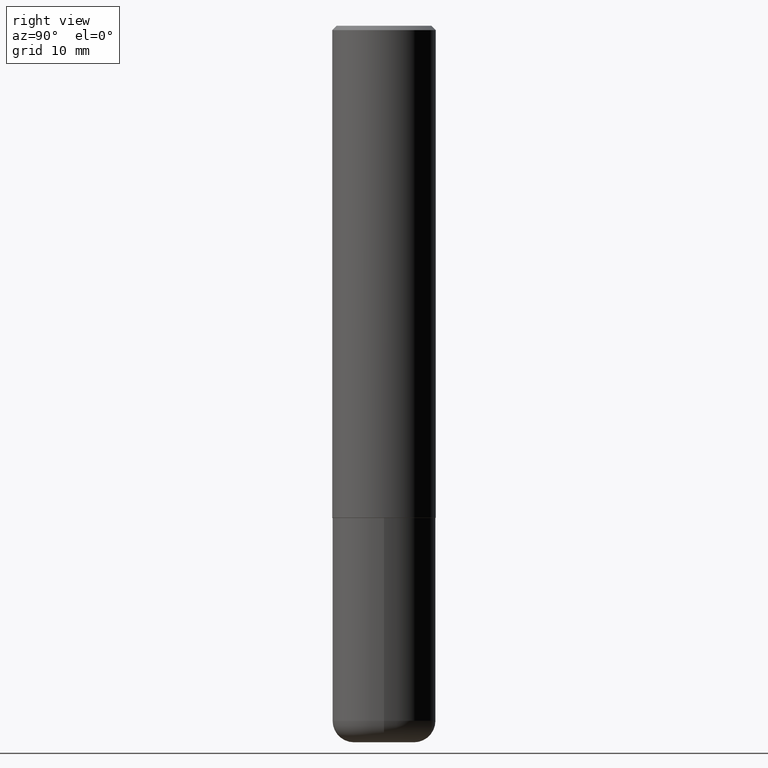
[diagram: clean part render]
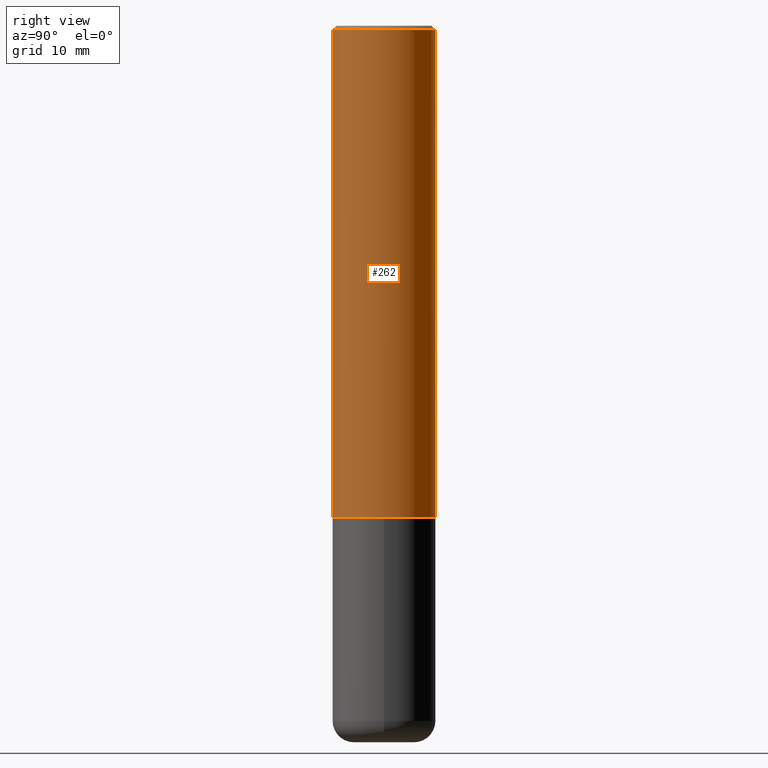
[diagram: same view with one face highlighted and labeled with its STEP entity id]
A machine part, right view. The second image highlights one B-rep face of the part: STEP entity #262.
In plain terms, the highlighted cylindrical surface (partial cylindrical patch) has radius 5.9995 mm, axis along (-0, 0, 1).
Its self-contained STEP definition (entity closure, byte-faithful):
#2 = EDGE_LOOP ( 'NONE', ( #9, #322, #370, #172 ) ) ;
#9 = ORIENTED_EDGE ( 'NONE', *, *, #223, .T. ) ;
#13 = EDGE_CURVE ( 'NONE', #233, #282, #202, .T. ) ;
#30 = CARTESIAN_POINT ( 'NONE',  ( 5.480338671844748839E-29, -7.839034408267561952E-15, -2.243100000000000094 ) ) ;
#61 = DIRECTION ( 'NONE',  ( -6.982962677686265922E-15, -1.000000000000000000, 3.469747663417773058E-15 ) ) ;
#63 = CIRCLE ( 'NONE', #257, 0.2362000000000002709 ) ;
#87 = CARTESIAN_POINT ( 'NONE',  ( -1.620449627073635079E-15, -0.2362000000000000766, -0.01999999999999926489 ) ) ;
#110 = DIRECTION ( 'NONE',  ( -6.982962677686265922E-15, -1.000000000000000000, 3.487819265831411744E-15 ) ) ;
#124 = FACE_OUTER_BOUND ( 'NONE', #2, .T. ) ;
#126 = AXIS2_PLACEMENT_3D ( 'NONE', #276, #377, #345 ) ;
#150 = CARTESIAN_POINT ( 'NONE',  ( 1.678301941865385582E-15, 0.2361999999999924160, -2.243100000000000982 ) ) ;
#162 = VECTOR ( 'NONE', #268, 39.37007874015748143 ) ;
#170 = VERTEX_POINT ( 'NONE', #150 ) ;
#172 = ORIENTED_EDGE ( 'NONE', *, *, #251, .F. ) ;
#191 = CARTESIAN_POINT ( 'NONE',  ( -1.649375784469443080E-15, -0.2362000000000081257, -2.243099999999999206 ) ) ;
#202 = CIRCLE ( 'NONE', #402, 0.2361999999999999933 ) ;
#215 = DIRECTION ( 'NONE',  ( -2.443198551934710321E-29, 3.494732472144603410E-15, 1.000000000000000000 ) ) ;
#218 = CARTESIAN_POINT ( 'NONE',  ( 1.649375784469496525E-15, 0.2361999999999999378, -0.02000000000000091288 ) ) ;
#223 = EDGE_CURVE ( 'NONE', #261, #170, #63, .T. ) ;
#233 = VERTEX_POINT ( 'NONE', #87 ) ;
#246 = EDGE_CURVE ( 'NONE', #170, #282, #248, .T. ) ;
#248 = LINE ( 'NONE', #271, #162 ) ;
#251 = EDGE_CURVE ( 'NONE', #261, #233, #407, .T. ) ;
#257 = AXIS2_PLACEMENT_3D ( 'NONE', #30, #274, #61 ) ;
#261 = VERTEX_POINT ( 'NONE', #191 ) ;
#262 = ADVANCED_FACE ( 'NONE', ( #124 ), #278, .T. ) ;
#268 = DIRECTION ( 'NONE',  ( -2.443198551934710321E-29, 3.494732472144603016E-15, 1.000000000000000000 ) ) ;
#271 = CARTESIAN_POINT ( 'NONE',  ( 1.678301941865357380E-15, 0.2362000000000001321, -8.254558099205557624E-16 ) ) ;
#274 = DIRECTION ( 'NONE',  ( -2.443198551934710321E-29, 3.494732472144603410E-15, 1.000000000000000000 ) ) ;
#276 = CARTESIAN_POINT ( 'NONE',  ( 0.000000000000000000, 0.000000000000000000, 0.000000000000000000 ) ) ;
#278 = CYLINDRICAL_SURFACE ( 'NONE', #126, 0.2362000000000001321 ) ;
#282 = VERTEX_POINT ( 'NONE', #218 ) ;
#294 = VECTOR ( 'NONE', #305, 39.37007874015748143 ) ;
#305 = DIRECTION ( 'NONE',  ( -2.443198551934710321E-29, 3.494732472144603016E-15, 1.000000000000000000 ) ) ;
#311 = CARTESIAN_POINT ( 'NONE',  ( -1.649375784469496920E-15, -0.2362000000000001321, 8.254558099205557624E-16 ) ) ;
#322 = ORIENTED_EDGE ( 'NONE', *, *, #246, .T. ) ;
#334 = CARTESIAN_POINT ( 'NONE',  ( 4.886397103869442398E-31, -6.989464944289237832E-17, -0.02000000000000009062 ) ) ;
#345 = DIRECTION ( 'NONE',  ( -6.982962677686265922E-15, -1.000000000000000000, 3.494732472144603410E-15 ) ) ;
#370 = ORIENTED_EDGE ( 'NONE', *, *, #13, .F. ) ;
#377 = DIRECTION ( 'NONE',  ( -2.443198551934710321E-29, 3.494732472144603410E-15, 1.000000000000000000 ) ) ;
#402 = AXIS2_PLACEMENT_3D ( 'NONE', #334, #215, #110 ) ;
#407 = LINE ( 'NONE', #311, #294 ) ;